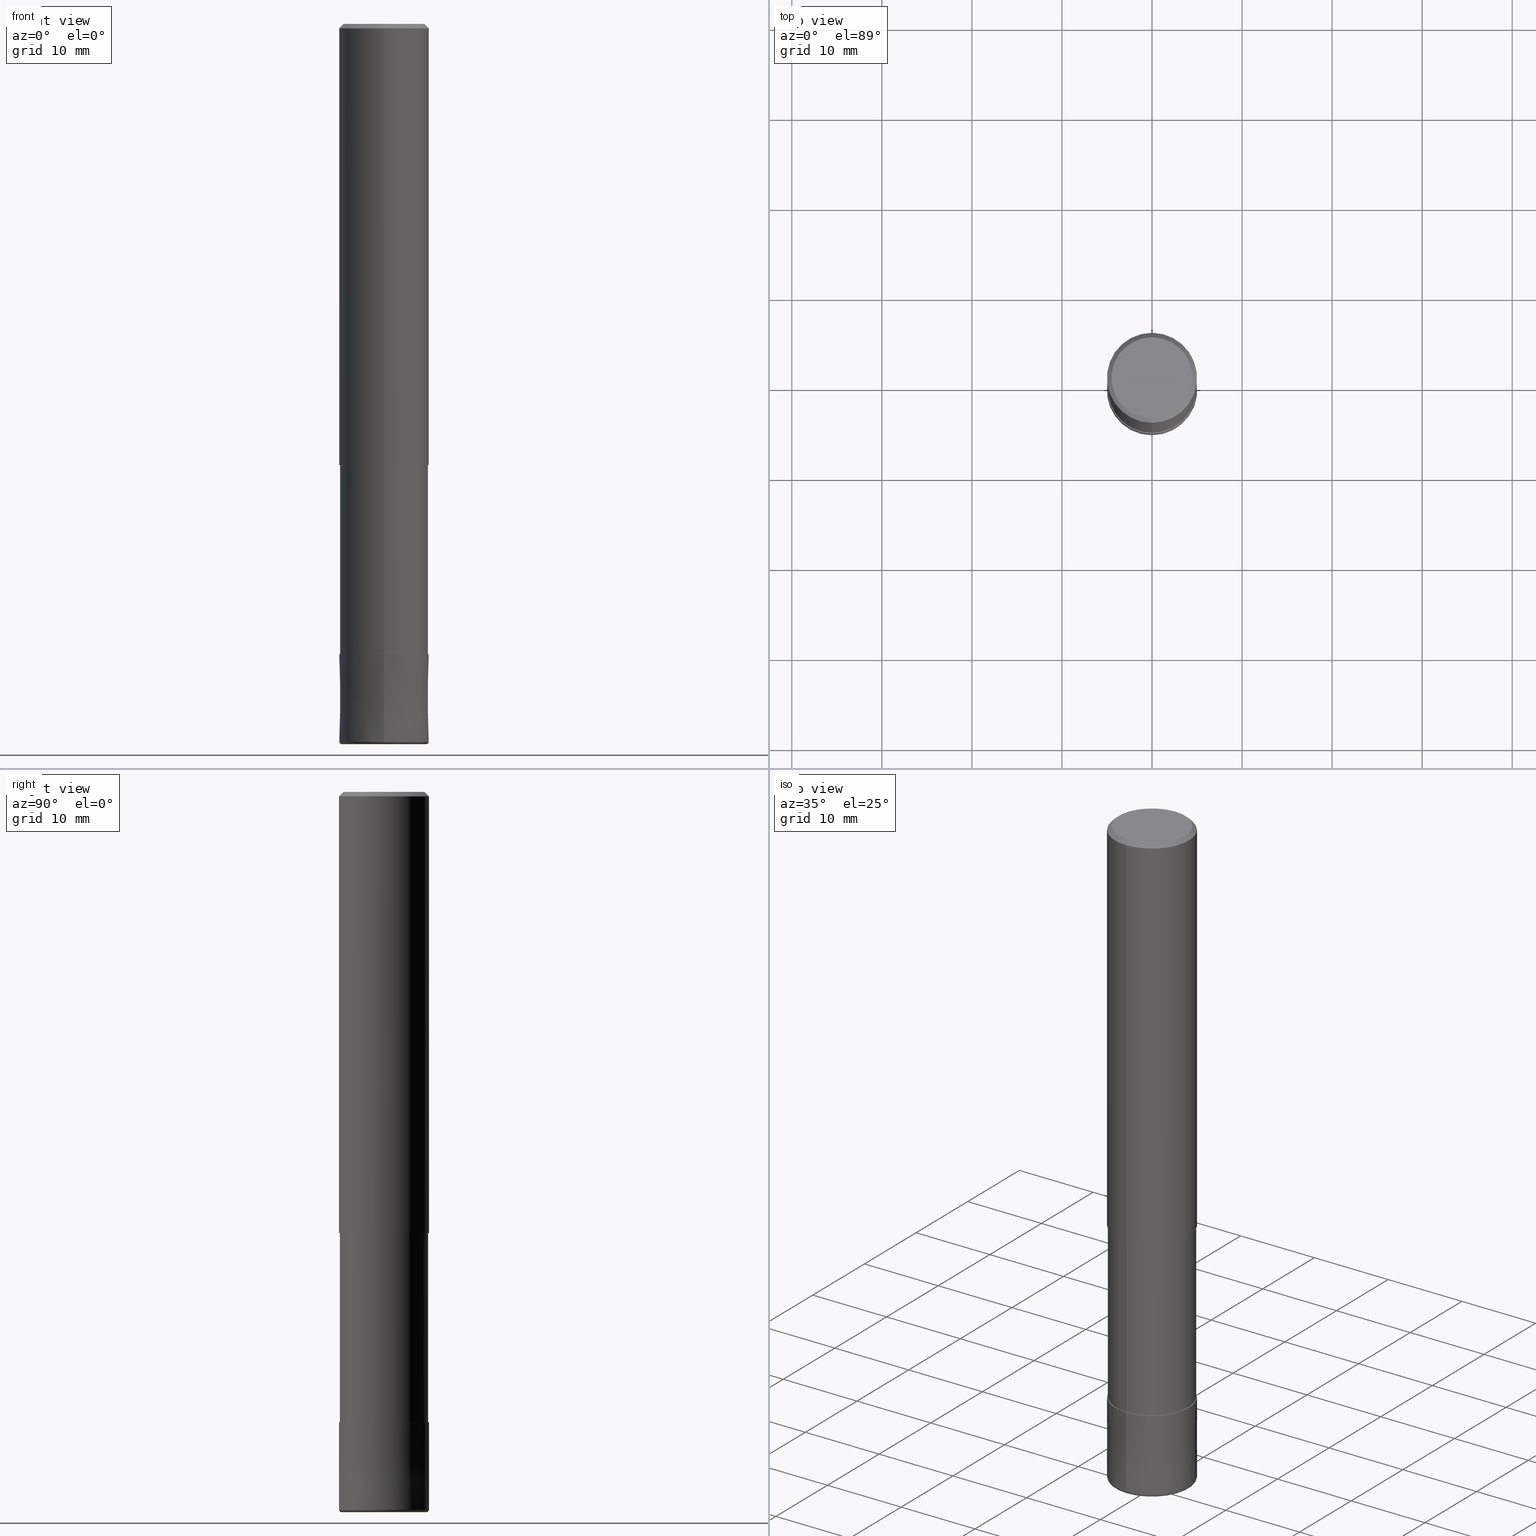
[diagram: canonical four-view strip — front | top / right | iso, engineering-drawing reading convention]
A machine part, canonical four-view strip (front | top / right | iso — engineering-drawing reading convention). The complete STEP part file that produces these views, byte-faithful:
ISO-10303-21;
HEADER;
FILE_DESCRIPTION(('no description'),'unknown implementation level');
FILE_NAME('HHRS6100-03-310-Huellk.stp','  ',('CIMSOURCE GmbH'),('CADClick - KiM GmbH - www.kimweb.de'),'unknown preprocess','ACIS','unknown authorization');
FILE_SCHEMA(('automotive_design'));
ENDSEC;
DATA;
#1=MECHANICAL_DESIGN_GEOMETRIC_PRESENTATION_REPRESENTATION(' ',(#14,#15,#16,#17,#18,#19,#20,#21,#22,#23,#24,#25,#26,#27,#28,#29,#30,#31,#32,#33,#34,#35,#36,#37,#38,#39,#40,#41,#42,#43,#44,#45,#46,#47,#48,#49,#50,#51,#52,#53,#54,#55,#56,#57,#58,#59,#60,#61,#62,#63,#64,#65,#66,#67,#68,#69,#70,#71,#72,#73,#74,#75,#76,#77,#78,#79,#80,#81,#82,#83,#84,#85,#86,#87,#88,#89,#90,#91,#92,#93,#94,#95,#96,#97),#10);
#2=PRODUCT_DEFINITION_CONTEXT('',#98,'design');
#3=APPLICATION_PROTOCOL_DEFINITION('INTERNATIONAL STANDARD','automotive_design',1994,#98);
#4=PRODUCT_CATEGORY_RELATIONSHIP('NONE','NONE',#99,#100);
#5=SHAPE_DEFINITION_REPRESENTATION(#101,#102);
#6=PRODUCT_DEFINITION_CONTEXT('',#103,'design');
#7=APPLICATION_PROTOCOL_DEFINITION('INTERNATIONAL STANDARD','automotive_design',1994,#103);
#8=PRODUCT_CATEGORY_RELATIONSHIP('NONE','NONE',#104,#105);
#9=SHAPE_DEFINITION_REPRESENTATION(#106,#107);
#10= (GEOMETRIC_REPRESENTATION_CONTEXT(3)GLOBAL_UNCERTAINTY_ASSIGNED_CONTEXT((#110))GLOBAL_UNIT_ASSIGNED_CONTEXT((#112,#113,#114))REPRESENTATION_CONTEXT('NONE','WORKSPACE'));
#14=STYLED_ITEM('',(#116),#117);
#15=STYLED_ITEM('',(#118),#119);
#16=STYLED_ITEM('',(#120),#121);
#17=STYLED_ITEM('',(#122),#123);
#18=STYLED_ITEM('',(#124),#125);
#19=STYLED_ITEM('',(#126),#127);
#20=STYLED_ITEM('',(#128),#129);
#21=STYLED_ITEM('',(#130),#131);
#22=STYLED_ITEM('',(#132),#133);
#23=STYLED_ITEM('',(#134),#135);
#24=STYLED_ITEM('',(#136),#137);
#25=STYLED_ITEM('',(#138),#139);
#26=STYLED_ITEM('',(#140),#141);
#27=STYLED_ITEM('',(#142),#143);
#28=STYLED_ITEM('',(#144),#145);
#29=STYLED_ITEM('',(#146),#147);
#30=STYLED_ITEM('',(#148),#149);
#31=STYLED_ITEM('',(#150),#151);
#32=STYLED_ITEM('',(#152),#153);
#33=STYLED_ITEM('',(#154),#155);
#34=STYLED_ITEM('',(#156),#157);
#35=STYLED_ITEM('',(#158),#159);
#36=STYLED_ITEM('',(#160),#161);
#37=STYLED_ITEM('',(#162),#163);
#38=STYLED_ITEM('',(#164),#165);
#39=STYLED_ITEM('',(#166),#167);
#40=STYLED_ITEM('',(#168),#169);
#41=STYLED_ITEM('',(#170),#171);
#42=STYLED_ITEM('',(#172),#173);
#43=STYLED_ITEM('',(#174),#175);
#44=STYLED_ITEM('',(#176),#177);
#45=STYLED_ITEM('',(#178),#179);
#46=STYLED_ITEM('',(#180),#181);
#47=STYLED_ITEM('',(#182),#183);
#48=STYLED_ITEM('',(#184),#185);
#49=STYLED_ITEM('',(#186),#187);
#50=STYLED_ITEM('',(#188),#189);
#51=STYLED_ITEM('',(#190),#191);
#52=STYLED_ITEM('',(#192),#193);
#53=STYLED_ITEM('',(#194),#195);
#54=STYLED_ITEM('',(#196),#197);
#55=STYLED_ITEM('',(#198),#199);
#56=STYLED_ITEM('',(#200),#201);
#57=STYLED_ITEM('',(#202),#203);
#58=STYLED_ITEM('',(#204),#205);
#59=STYLED_ITEM('',(#206),#207);
#60=STYLED_ITEM('',(#208),#209);
#61=STYLED_ITEM('',(#210),#211);
#62=STYLED_ITEM('',(#212),#213);
#63=STYLED_ITEM('',(#214),#215);
#64=STYLED_ITEM('',(#216),#217);
#65=STYLED_ITEM('',(#218),#219);
#66=STYLED_ITEM('',(#220),#221);
#67=STYLED_ITEM('',(#222),#223);
#68=STYLED_ITEM('',(#224),#225);
#69=STYLED_ITEM('',(#226),#227);
#70=STYLED_ITEM('',(#228),#229);
#71=STYLED_ITEM('',(#230),#231);
#72=STYLED_ITEM('',(#232),#233);
#73=STYLED_ITEM('',(#234),#235);
#74=STYLED_ITEM('',(#236),#237);
#75=STYLED_ITEM('',(#238),#239);
#76=STYLED_ITEM('',(#240),#241);
#77=STYLED_ITEM('',(#242),#243);
#78=STYLED_ITEM('',(#244),#245);
#79=STYLED_ITEM('',(#246),#247);
#80=STYLED_ITEM('',(#248),#249);
#81=STYLED_ITEM('',(#250),#251);
#82=STYLED_ITEM('',(#252),#253);
#83=STYLED_ITEM('',(#254),#255);
#84=STYLED_ITEM('',(#256),#257);
#85=STYLED_ITEM('',(#258),#259);
#86=STYLED_ITEM('',(#260),#261);
#87=STYLED_ITEM('',(#262),#263);
#88=STYLED_ITEM('',(#264),#265);
#89=STYLED_ITEM('',(#266),#267);
#90=STYLED_ITEM('',(#268),#269);
#91=STYLED_ITEM('',(#270),#271);
#92=STYLED_ITEM('',(#272),#273);
#93=STYLED_ITEM('',(#274),#275);
#94=STYLED_ITEM('',(#276),#277);
#95=STYLED_ITEM('',(#278),#279);
#96=STYLED_ITEM('',(#280),#281);
#97=STYLED_ITEM('',(#282),#283);
#98=APPLICATION_CONTEXT(' ');
#99=PRODUCT_CATEGORY('part','NONE');
#100=PRODUCT_RELATED_PRODUCT_CATEGORY('detail',' ',(#284));
#101=PRODUCT_DEFINITION_SHAPE('NONE','NONE',#285);
#102=ADVANCED_BREP_SHAPE_REPRESENTATION('1',(#237,#286),#10);
#103=APPLICATION_CONTEXT(' ');
#104=PRODUCT_CATEGORY('part','NONE');
#105=PRODUCT_RELATED_PRODUCT_CATEGORY('detail',' ',(#287));
#106=PRODUCT_DEFINITION_SHAPE('NONE','NONE',#288);
#107=ADVANCED_BREP_SHAPE_REPRESENTATION('2',(#263,#289),#10);
#110=UNCERTAINTY_MEASURE_WITH_UNIT(LENGTH_MEASURE(1.0E-006),#112,'','');
#112= (CONVERSION_BASED_UNIT('MILLIMETRE',#292)LENGTH_UNIT()NAMED_UNIT(#295));
#113= (NAMED_UNIT(#297)PLANE_ANGLE_UNIT()SI_UNIT($,.RADIAN.));
#114= (NAMED_UNIT(#297)SOLID_ANGLE_UNIT()SI_UNIT($,.STERADIAN.));
#116=PRESENTATION_STYLE_ASSIGNMENT((#303));
#117=EDGE_CURVE('',#243,#143,#304,.T.);
#118=PRESENTATION_STYLE_ASSIGNMENT((#305));
#119=ADVANCED_FACE('',(#306,#307),#308,.T.);
#120=PRESENTATION_STYLE_ASSIGNMENT((#309));
#121=ADVANCED_FACE('',(#310),#311,.F.);
#122=PRESENTATION_STYLE_ASSIGNMENT((#312));
#123=VERTEX_POINT('',#313);
#124=PRESENTATION_STYLE_ASSIGNMENT((#314));
#125=ADVANCED_FACE('',(#315),#316,.T.);
#126=PRESENTATION_STYLE_ASSIGNMENT((#317));
#127=EDGE_CURVE('',#187,#275,#318,.T.);
#128=PRESENTATION_STYLE_ASSIGNMENT((#319));
#129=EDGE_CURVE('',#183,#259,#320,.T.);
#130=PRESENTATION_STYLE_ASSIGNMENT((#321));
#131=VERTEX_POINT('',#322);
#132=PRESENTATION_STYLE_ASSIGNMENT((#323));
#133=VERTEX_POINT('',#324);
#134=PRESENTATION_STYLE_ASSIGNMENT((#325));
#135=ADVANCED_FACE('',(#326),#327,.T.);
#136=PRESENTATION_STYLE_ASSIGNMENT((#328));
#137=ADVANCED_FACE('',(#329),#330,.T.);
#138=PRESENTATION_STYLE_ASSIGNMENT((#331));
#139=VERTEX_POINT('',#332);
#140=PRESENTATION_STYLE_ASSIGNMENT((#333));
#141=ADVANCED_FACE('',(#334,#335),#336,.T.);
#142=PRESENTATION_STYLE_ASSIGNMENT((#337));
#143=VERTEX_POINT('',#338);
#144=PRESENTATION_STYLE_ASSIGNMENT((#339));
#145=EDGE_CURVE('',#155,#199,#340,.T.);
#146=PRESENTATION_STYLE_ASSIGNMENT((#341));
#147=ADVANCED_FACE('',(#342,#343),#344,.T.);
#148=PRESENTATION_STYLE_ASSIGNMENT((#345));
#149=ADVANCED_FACE('',(#346),#347,.T.);
#150=PRESENTATION_STYLE_ASSIGNMENT((#348));
#151=EDGE_CURVE('',#199,#267,#349,.T.);
#152=PRESENTATION_STYLE_ASSIGNMENT((#350));
#153=EDGE_CURVE('',#157,#187,#351,.T.);
#154=PRESENTATION_STYLE_ASSIGNMENT((#352));
#155=VERTEX_POINT('',#353);
#156=PRESENTATION_STYLE_ASSIGNMENT((#354));
#157=VERTEX_POINT('',#355);
#158=PRESENTATION_STYLE_ASSIGNMENT((#356));
#159=EDGE_CURVE('',#275,#123,#357,.T.);
#160=PRESENTATION_STYLE_ASSIGNMENT((#358));
#161=EDGE_CURVE('',#267,#131,#359,.T.);
#162=PRESENTATION_STYLE_ASSIGNMENT((#360));
#163=ADVANCED_FACE('',(#361),#362,.T.);
#164=PRESENTATION_STYLE_ASSIGNMENT((#363));
#165=VERTEX_POINT('',#364);
#166=PRESENTATION_STYLE_ASSIGNMENT((#365));
#167=VERTEX_POINT('',#366);
#168=PRESENTATION_STYLE_ASSIGNMENT((#367));
#169=ADVANCED_FACE('',(#368),#369,.T.);
#170=PRESENTATION_STYLE_ASSIGNMENT((#370));
#171=VERTEX_POINT('',#371);
#172=PRESENTATION_STYLE_ASSIGNMENT((#372));
#173=ADVANCED_FACE('',(#373),#374,.T.);
#174=PRESENTATION_STYLE_ASSIGNMENT((#375));
#175=EDGE_CURVE('',#165,#193,#376,.T.);
#176=PRESENTATION_STYLE_ASSIGNMENT((#377));
#177=EDGE_CURVE('',#123,#157,#378,.T.);
#178=PRESENTATION_STYLE_ASSIGNMENT((#379));
#179=EDGE_CURVE('',#279,#213,#380,.T.);
#180=PRESENTATION_STYLE_ASSIGNMENT((#381));
#181=VERTEX_POINT('',#382);
#182=PRESENTATION_STYLE_ASSIGNMENT((#383));
#183=VERTEX_POINT('',#384);
#184=PRESENTATION_STYLE_ASSIGNMENT((#385));
#185=EDGE_CURVE('',#275,#187,#386,.T.);
#186=PRESENTATION_STYLE_ASSIGNMENT((#387));
#187=VERTEX_POINT('',#388);
#188=PRESENTATION_STYLE_ASSIGNMENT((#389));
#189=ADVANCED_FACE('',(#390),#391,.T.);
#190=PRESENTATION_STYLE_ASSIGNMENT((#392));
#191=EDGE_CURVE('',#143,#157,#393,.T.);
#192=PRESENTATION_STYLE_ASSIGNMENT((#394));
#193=VERTEX_POINT('',#395);
#194=PRESENTATION_STYLE_ASSIGNMENT((#396));
#195=ADVANCED_FACE('',(#397),#398,.T.);
#196=PRESENTATION_STYLE_ASSIGNMENT((#399));
#197=EDGE_CURVE('',#181,#217,#400,.T.);
#198=PRESENTATION_STYLE_ASSIGNMENT((#401));
#199=VERTEX_POINT('',#402);
#200=PRESENTATION_STYLE_ASSIGNMENT((#403));
#201=ADVANCED_FACE('',(#404),#405,.T.);
#202=PRESENTATION_STYLE_ASSIGNMENT((#406));
#203=EDGE_CURVE('',#167,#251,#407,.T.);
#204=PRESENTATION_STYLE_ASSIGNMENT((#408));
#205=EDGE_CURVE('',#183,#139,#409,.T.);
#206=PRESENTATION_STYLE_ASSIGNMENT((#410));
#207=EDGE_CURVE('',#193,#165,#411,.T.);
#208=PRESENTATION_STYLE_ASSIGNMENT((#412));
#209=ADVANCED_FACE('',(#413),#414,.T.);
#210=PRESENTATION_STYLE_ASSIGNMENT((#415));
#211=ADVANCED_FACE('',(#416,#417),#418,.T.);
#212=PRESENTATION_STYLE_ASSIGNMENT((#419));
#213=VERTEX_POINT('',#420);
#214=PRESENTATION_STYLE_ASSIGNMENT((#421));
#215=ADVANCED_FACE('',(#422),#423,.T.);
#216=PRESENTATION_STYLE_ASSIGNMENT((#424));
#217=VERTEX_POINT('',#425);
#218=PRESENTATION_STYLE_ASSIGNMENT((#426));
#219=EDGE_CURVE('',#167,#217,#427,.T.);
#220=PRESENTATION_STYLE_ASSIGNMENT((#428));
#221=EDGE_CURVE('',#213,#171,#429,.T.);
#222=PRESENTATION_STYLE_ASSIGNMENT((#430));
#223=EDGE_CURVE('',#143,#243,#431,.T.);
#224=PRESENTATION_STYLE_ASSIGNMENT((#432));
#225=EDGE_CURVE('',#233,#279,#433,.T.);
#226=PRESENTATION_STYLE_ASSIGNMENT((#434));
#227=EDGE_CURVE('',#133,#259,#435,.T.);
#228=PRESENTATION_STYLE_ASSIGNMENT((#436));
#229=EDGE_CURVE('',#259,#133,#437,.T.);
#230=PRESENTATION_STYLE_ASSIGNMENT((#438));
#231=EDGE_CURVE('',#171,#233,#439,.T.);
#232=PRESENTATION_STYLE_ASSIGNMENT((#440));
#233=VERTEX_POINT('',#441);
#234=PRESENTATION_STYLE_ASSIGNMENT((#442));
#235=EDGE_CURVE('',#217,#167,#443,.T.);
#236=PRESENTATION_STYLE_ASSIGNMENT((#444));
#237=MANIFOLD_SOLID_BREP('1',#445);
#238=PRESENTATION_STYLE_ASSIGNMENT((#446));
#239=ADVANCED_FACE('',(#447),#448,.T.);
#240=PRESENTATION_STYLE_ASSIGNMENT((#449));
#241=EDGE_CURVE('',#139,#183,#450,.T.);
#242=PRESENTATION_STYLE_ASSIGNMENT((#451));
#243=VERTEX_POINT('',#452);
#244=PRESENTATION_STYLE_ASSIGNMENT((#453));
#245=EDGE_CURVE('',#251,#181,#454,.T.);
#246=PRESENTATION_STYLE_ASSIGNMENT((#455));
#247=ADVANCED_FACE('',(#456),#457,.T.);
#248=PRESENTATION_STYLE_ASSIGNMENT((#458));
#249=EDGE_CURVE('',#267,#199,#459,.T.);
#250=PRESENTATION_STYLE_ASSIGNMENT((#460));
#251=VERTEX_POINT('',#461);
#252=PRESENTATION_STYLE_ASSIGNMENT((#462));
#253=EDGE_CURVE('',#123,#243,#463,.T.);
#254=PRESENTATION_STYLE_ASSIGNMENT((#464));
#255=EDGE_CURVE('',#131,#155,#465,.T.);
#256=PRESENTATION_STYLE_ASSIGNMENT((#466));
#257=EDGE_CURVE('',#193,#213,#467,.T.);
#258=PRESENTATION_STYLE_ASSIGNMENT((#468));
#259=VERTEX_POINT('',#469);
#260=PRESENTATION_STYLE_ASSIGNMENT((#470));
#261=EDGE_CURVE('',#155,#131,#471,.T.);
#262=PRESENTATION_STYLE_ASSIGNMENT((#472));
#263=MANIFOLD_SOLID_BREP('2',#473);
#264=PRESENTATION_STYLE_ASSIGNMENT((#474));
#265=EDGE_CURVE('',#171,#165,#475,.T.);
#266=PRESENTATION_STYLE_ASSIGNMENT((#476));
#267=VERTEX_POINT('',#477);
#268=PRESENTATION_STYLE_ASSIGNMENT((#478));
#269=EDGE_CURVE('',#133,#139,#479,.T.);
#270=PRESENTATION_STYLE_ASSIGNMENT((#480));
#271=ADVANCED_FACE('',(#481),#482,.F.);
#272=PRESENTATION_STYLE_ASSIGNMENT((#483));
#273=EDGE_CURVE('',#181,#251,#484,.T.);
#274=PRESENTATION_STYLE_ASSIGNMENT((#485));
#275=VERTEX_POINT('',#486);
#276=PRESENTATION_STYLE_ASSIGNMENT((#487));
#277=EDGE_CURVE('',#157,#123,#488,.T.);
#278=PRESENTATION_STYLE_ASSIGNMENT((#489));
#279=VERTEX_POINT('',#490);
#280=PRESENTATION_STYLE_ASSIGNMENT((#491));
#281=EDGE_CURVE('',#279,#233,#492,.T.);
#282=PRESENTATION_STYLE_ASSIGNMENT((#493));
#283=EDGE_CURVE('',#171,#213,#494,.T.);
#284=PRODUCT('1','1','PART-1-DESC',(#495));
#285=PRODUCT_DEFINITION('NONE','NONE',#496,#2);
#286=AXIS2_PLACEMENT_3D('',#497,#498,#499);
#287=PRODUCT('2','2','PART-2-DESC',(#500));
#288=PRODUCT_DEFINITION('NONE','NONE',#501,#6);
#289=AXIS2_PLACEMENT_3D('',#502,#503,#504);
#292=LENGTH_MEASURE_WITH_UNIT(LENGTH_MEASURE(1.0),#505);
#295=DIMENSIONAL_EXPONENTS(1.0,0.0,0.0,0.0,0.0,0.0,0.0);
#297=DIMENSIONAL_EXPONENTS(0.0,0.0,0.0,0.0,0.0,0.0,0.0);
#303=CURVE_STYLE('',#506,POSITIVE_LENGTH_MEASURE(1.0E-006),#507);
#304=CIRCLE('',#508,5.0);
#305=SURFACE_STYLE_USAGE(.BOTH.,#509);
#306=FACE_BOUND('',#510,.T.);
#307=FACE_OUTER_BOUND('',#511,.T.);
#308=PLANE('',#512);
#309=SURFACE_STYLE_USAGE(.BOTH.,#513);
#310=FACE_OUTER_BOUND('',#514,.T.);
#311=CYLINDRICAL_SURFACE('',#515,2.25);
#312=POINT_STYLE(' ',#516,POSITIVE_LENGTH_MEASURE(1.0E-006),#517);
#313=CARTESIAN_POINT('',(0.0,5.0,-0.5));
#314=SURFACE_STYLE_USAGE(.BOTH.,#518);
#315=FACE_OUTER_BOUND('',#519,.T.);
#316=TOROIDAL_SURFACE('',#520,4.7,0.300000000000002);
#317=CURVE_STYLE('',#521,POSITIVE_LENGTH_MEASURE(1.0E-006),#522);
#318=CIRCLE('',#523,4.5);
#319=CURVE_STYLE('',#524,POSITIVE_LENGTH_MEASURE(1.0E-006),#525);
#320=LINE('',#526,#527);
#321=POINT_STYLE(' ',#528,POSITIVE_LENGTH_MEASURE(1.0E-006),#529);
#322=CARTESIAN_POINT('',(2.75536429610035E-016,-2.25,-70.0));
#323=POINT_STYLE(' ',#530,POSITIVE_LENGTH_MEASURE(1.0E-006),#531);
#324=CARTESIAN_POINT('',(0.0,2.25,-70.0));
#325=SURFACE_STYLE_USAGE(.BOTH.,#532);
#326=FACE_OUTER_BOUND('',#533,.T.);
#327=CONICAL_SURFACE('',#534,4.75,0.785398163397448);
#328=SURFACE_STYLE_USAGE(.BOTH.,#535);
#329=FACE_OUTER_BOUND('',#536,.T.);
#330=PLANE('',#537);
#331=POINT_STYLE(' ',#538,POSITIVE_LENGTH_MEASURE(1.0E-006),#539);
#332=CARTESIAN_POINT('',(0.0,2.25,-79.8));
#333=SURFACE_STYLE_USAGE(.BOTH.,#540);
#334=FACE_OUTER_BOUND('',#541,.T.);
#335=FACE_BOUND('',#542,.T.);
#336=PLANE('',#543);
#337=POINT_STYLE(' ',#544,POSITIVE_LENGTH_MEASURE(1.0E-006),#545);
#338=CARTESIAN_POINT('',(6.12303176911189E-016,-5.0,-49.0));
#339=CURVE_STYLE('',#546,POSITIVE_LENGTH_MEASURE(1.0E-006),#547);
#340=LINE('',#548,#549);
#341=SURFACE_STYLE_USAGE(.BOTH.,#550);
#342=FACE_BOUND('',#551,.T.);
#343=FACE_OUTER_BOUND('',#552,.T.);
#344=PLANE('',#553);
#345=SURFACE_STYLE_USAGE(.BOTH.,#554);
#346=FACE_OUTER_BOUND('',#555,.T.);
#347=CONICAL_SURFACE('',#556,4.99995,1.03092783501262E-005);
#348=CURVE_STYLE('',#557,POSITIVE_LENGTH_MEASURE(1.0E-006),#558);
#349=CIRCLE('',#559,2.25);
#350=CURVE_STYLE('',#560,POSITIVE_LENGTH_MEASURE(1.0E-006),#561);
#351=LINE('',#562,#563);
#352=POINT_STYLE(' ',#564,POSITIVE_LENGTH_MEASURE(1.0E-006),#565);
#353=CARTESIAN_POINT('',(0.0,2.25,-70.0));
#354=POINT_STYLE(' ',#566,POSITIVE_LENGTH_MEASURE(1.0E-006),#567);
#355=CARTESIAN_POINT('',(6.12303176911189E-016,-5.0,-0.5));
#356=CURVE_STYLE('',#568,POSITIVE_LENGTH_MEASURE(1.0E-006),#569);
#357=LINE('',#570,#571);
#358=CURVE_STYLE('',#572,POSITIVE_LENGTH_MEASURE(1.0E-006),#573);
#359=LINE('',#574,#575);
#360=SURFACE_STYLE_USAGE(.BOTH.,#576);
#361=FACE_OUTER_BOUND('',#577,.T.);
#362=TOROIDAL_SURFACE('',#578,4.7,0.300000000000002);
#363=POINT_STYLE(' ',#579,POSITIVE_LENGTH_MEASURE(1.0E-006),#580);
#364=CARTESIAN_POINT('',(5.75564986296517E-016,-4.7,-80.0));
#365=POINT_STYLE(' ',#581,POSITIVE_LENGTH_MEASURE(1.0E-006),#582);
#366=CARTESIAN_POINT('',(6.00663293518107E-016,-4.90495,-70.0));
#367=SURFACE_STYLE_USAGE(.BOTH.,#583);
#368=FACE_OUTER_BOUND('',#584,.T.);
#369=CONICAL_SURFACE('',#585,4.75,0.785398163397448);
#370=POINT_STYLE(' ',#586,POSITIVE_LENGTH_MEASURE(1.0E-006),#587);
#371=CARTESIAN_POINT('',(6.12303176911189E-016,-5.0,-79.7));
#372=SURFACE_STYLE_USAGE(.BOTH.,#588);
#373=FACE_OUTER_BOUND('',#589,.T.);
#374=CYLINDRICAL_SURFACE('',#590,5.0);
#375=CURVE_STYLE('',#591,POSITIVE_LENGTH_MEASURE(1.0E-006),#592);
#376=CIRCLE('',#593,4.7);
#377=CURVE_STYLE('',#594,POSITIVE_LENGTH_MEASURE(1.0E-006),#595);
#378=CIRCLE('',#596,5.0);
#379=CURVE_STYLE('',#597,POSITIVE_LENGTH_MEASURE(1.0E-006),#598);
#380=LINE('',#599,#600);
#381=POINT_STYLE(' ',#601,POSITIVE_LENGTH_MEASURE(1.0E-006),#602);
#382=CARTESIAN_POINT('',(0.0,4.90495,-49.0));
#383=POINT_STYLE(' ',#603,POSITIVE_LENGTH_MEASURE(1.0E-006),#604);
#384=CARTESIAN_POINT('',(2.75536429610035E-016,-2.25,-79.8));
#385=CURVE_STYLE('',#605,POSITIVE_LENGTH_MEASURE(1.0E-006),#606);
#386=CIRCLE('',#607,4.5);
#387=POINT_STYLE(' ',#608,POSITIVE_LENGTH_MEASURE(1.0E-006),#609);
#388=CARTESIAN_POINT('',(5.5107285922007E-016,-4.5,0.0));
#389=SURFACE_STYLE_USAGE(.BOTH.,#610);
#390=FACE_OUTER_BOUND('',#611,.T.);
#391=CYLINDRICAL_SURFACE('',#612,2.25);
#392=CURVE_STYLE('',#613,POSITIVE_LENGTH_MEASURE(1.0E-006),#614);
#393=LINE('',#615,#616);
#394=POINT_STYLE(' ',#617,POSITIVE_LENGTH_MEASURE(1.0E-006),#618);
#395=CARTESIAN_POINT('',(0.0,4.7,-80.0));
#396=SURFACE_STYLE_USAGE(.BOTH.,#619);
#397=FACE_OUTER_BOUND('',#620,.T.);
#398=CYLINDRICAL_SURFACE('',#621,2.25);
#399=CURVE_STYLE('',#622,POSITIVE_LENGTH_MEASURE(1.0E-006),#623);
#400=LINE('',#624,#625);
#401=POINT_STYLE(' ',#626,POSITIVE_LENGTH_MEASURE(1.0E-006),#627);
#402=CARTESIAN_POINT('',(0.0,2.25,-80.0));
#403=SURFACE_STYLE_USAGE(.BOTH.,#628);
#404=FACE_OUTER_BOUND('',#629,.T.);
#405=CYLINDRICAL_SURFACE('',#630,4.90495);
#406=CURVE_STYLE('',#631,POSITIVE_LENGTH_MEASURE(1.0E-006),#632);
#407=LINE('',#633,#634);
#408=CURVE_STYLE('',#635,POSITIVE_LENGTH_MEASURE(1.0E-006),#636);
#409=CIRCLE('',#637,2.25);
#410=CURVE_STYLE('',#638,POSITIVE_LENGTH_MEASURE(1.0E-006),#639);
#411=CIRCLE('',#640,4.7);
#412=SURFACE_STYLE_USAGE(.BOTH.,#641);
#413=FACE_OUTER_BOUND('',#642,.T.);
#414=PLANE('',#643);
#415=SURFACE_STYLE_USAGE(.BOTH.,#644);
#416=FACE_OUTER_BOUND('',#645,.T.);
#417=FACE_BOUND('',#646,.T.);
#418=PLANE('',#647);
#419=POINT_STYLE(' ',#648,POSITIVE_LENGTH_MEASURE(1.0E-006),#649);
#420=CARTESIAN_POINT('',(0.0,5.0,-79.7));
#421=SURFACE_STYLE_USAGE(.BOTH.,#650);
#422=FACE_OUTER_BOUND('',#651,.T.);
#423=CYLINDRICAL_SURFACE('',#652,5.0);
#424=POINT_STYLE(' ',#653,POSITIVE_LENGTH_MEASURE(1.0E-006),#654);
#425=CARTESIAN_POINT('',(0.0,4.90495,-70.0));
#426=CURVE_STYLE('',#655,POSITIVE_LENGTH_MEASURE(1.0E-006),#656);
#427=CIRCLE('',#657,4.90495);
#428=CURVE_STYLE('',#658,POSITIVE_LENGTH_MEASURE(1.0E-006),#659);
#429=CIRCLE('',#660,5.0);
#430=CURVE_STYLE('',#661,POSITIVE_LENGTH_MEASURE(1.0E-006),#662);
#431=CIRCLE('',#663,5.0);
#432=CURVE_STYLE('',#664,POSITIVE_LENGTH_MEASURE(1.0E-006),#665);
#433=CIRCLE('',#666,4.9999);
#434=CURVE_STYLE('',#667,POSITIVE_LENGTH_MEASURE(1.0E-006),#668);
#435=CIRCLE('',#669,2.25);
#436=CURVE_STYLE('',#670,POSITIVE_LENGTH_MEASURE(1.0E-006),#671);
#437=CIRCLE('',#672,2.25);
#438=CURVE_STYLE('',#673,POSITIVE_LENGTH_MEASURE(1.0E-006),#674);
#439=LINE('',#675,#676);
#440=POINT_STYLE(' ',#677,POSITIVE_LENGTH_MEASURE(1.0E-006),#678);
#441=CARTESIAN_POINT('',(6.1229093084765E-016,-4.9999,-70.0));
#442=CURVE_STYLE('',#679,POSITIVE_LENGTH_MEASURE(1.0E-006),#680);
#443=CIRCLE('',#681,4.90495);
#444=SURFACE_STYLE_USAGE(.BOTH.,#682);
#445=CLOSED_SHELL('',(#189,#201,#215,#135,#211,#209,#169,#173,#239,#147,#195,#137));
#446=SURFACE_STYLE_USAGE(.BOTH.,#683);
#447=FACE_OUTER_BOUND('',#684,.T.);
#448=CYLINDRICAL_SURFACE('',#685,4.90495);
#449=CURVE_STYLE('',#686,POSITIVE_LENGTH_MEASURE(1.0E-006),#687);
#450=CIRCLE('',#688,2.25);
#451=POINT_STYLE(' ',#689,POSITIVE_LENGTH_MEASURE(1.0E-006),#690);
#452=CARTESIAN_POINT('',(0.0,5.0,-49.0));
#453=CURVE_STYLE('',#691,POSITIVE_LENGTH_MEASURE(1.0E-006),#692);
#454=CIRCLE('',#693,4.90495);
#455=SURFACE_STYLE_USAGE(.BOTH.,#694);
#456=FACE_OUTER_BOUND('',#695,.T.);
#457=CONICAL_SURFACE('',#696,4.99995,1.03092783501262E-005);
#458=CURVE_STYLE('',#697,POSITIVE_LENGTH_MEASURE(1.0E-006),#698);
#459=CIRCLE('',#699,2.25);
#460=POINT_STYLE(' ',#700,POSITIVE_LENGTH_MEASURE(1.0E-006),#701);
#461=CARTESIAN_POINT('',(6.00663293518107E-016,-4.90495,-49.0));
#462=CURVE_STYLE('',#702,POSITIVE_LENGTH_MEASURE(1.0E-006),#703);
#463=LINE('',#704,#705);
#464=CURVE_STYLE('',#706,POSITIVE_LENGTH_MEASURE(1.0E-006),#707);
#465=CIRCLE('',#708,2.25);
#466=CURVE_STYLE('',#709,POSITIVE_LENGTH_MEASURE(1.0E-006),#710);
#467=CIRCLE('',#711,0.300000000000002);
#468=POINT_STYLE(' ',#712,POSITIVE_LENGTH_MEASURE(1.0E-006),#713);
#469=CARTESIAN_POINT('',(2.75536429610035E-016,-2.25,-70.0));
#470=CURVE_STYLE('',#714,POSITIVE_LENGTH_MEASURE(1.0E-006),#715);
#471=CIRCLE('',#716,2.25);
#472=SURFACE_STYLE_USAGE(.BOTH.,#717);
#473=CLOSED_SHELL('',(#271,#163,#149,#141,#247,#125,#119,#121));
#474=CURVE_STYLE('',#718,POSITIVE_LENGTH_MEASURE(1.0E-006),#719);
#475=CIRCLE('',#720,0.300000000000002);
#476=POINT_STYLE(' ',#721,POSITIVE_LENGTH_MEASURE(1.0E-006),#722);
#477=CARTESIAN_POINT('',(2.75536429610035E-016,-2.25,-80.0));
#478=CURVE_STYLE('',#723,POSITIVE_LENGTH_MEASURE(1.0E-006),#724);
#479=LINE('',#725,#726);
#480=SURFACE_STYLE_USAGE(.BOTH.,#727);
#481=FACE_OUTER_BOUND('',#728,.T.);
#482=CYLINDRICAL_SURFACE('',#729,2.25);
#483=CURVE_STYLE('',#730,POSITIVE_LENGTH_MEASURE(1.0E-006),#731);
#484=CIRCLE('',#732,4.90495);
#485=POINT_STYLE(' ',#733,POSITIVE_LENGTH_MEASURE(1.0E-006),#734);
#486=CARTESIAN_POINT('',(0.0,4.5,0.0));
#487=CURVE_STYLE('',#735,POSITIVE_LENGTH_MEASURE(1.0E-006),#736);
#488=CIRCLE('',#737,5.0);
#489=POINT_STYLE(' ',#738,POSITIVE_LENGTH_MEASURE(1.0E-006),#739);
#490=CARTESIAN_POINT('',(0.0,4.9999,-70.0));
#491=CURVE_STYLE('',#740,POSITIVE_LENGTH_MEASURE(1.0E-006),#741);
#492=CIRCLE('',#742,4.9999);
#493=CURVE_STYLE('',#743,POSITIVE_LENGTH_MEASURE(1.0E-006),#744);
#494=CIRCLE('',#745,5.0);
#495=PRODUCT_CONTEXT('',#98,'mechanical');
#496=PRODUCT_DEFINITION_FORMATION_WITH_SPECIFIED_SOURCE(' ','NONE',#284,.NOT_KNOWN.);
#497=CARTESIAN_POINT('',(0.0,0.0,0.0));
#498=DIRECTION('',(0.0,0.0,1.0));
#499=DIRECTION('',(1.0,0.0,0.0));
#500=PRODUCT_CONTEXT('',#103,'mechanical');
#501=PRODUCT_DEFINITION_FORMATION_WITH_SPECIFIED_SOURCE(' ','NONE',#287,.NOT_KNOWN.);
#502=CARTESIAN_POINT('',(0.0,0.0,0.0));
#503=DIRECTION('',(0.0,0.0,1.0));
#504=DIRECTION('',(1.0,0.0,0.0));
#505= (NAMED_UNIT(#295)LENGTH_UNIT()SI_UNIT(.MILLI.,.METRE.));
#506=DRAUGHTING_PRE_DEFINED_CURVE_FONT('continuous');
#507=COLOUR_RGB('',0.498039215803146,0.498039215803146,0.498039215803146);
#508=AXIS2_PLACEMENT_3D('',#747,#748,#749);
#509=SURFACE_SIDE_STYLE('',(#750));
#510=EDGE_LOOP('',(#751,#752));
#511=EDGE_LOOP('',(#753,#754));
#512=AXIS2_PLACEMENT_3D('',#755,#756,#757);
#513=SURFACE_SIDE_STYLE('',(#758));
#514=EDGE_LOOP('',(#759,#760,#761,#762));
#515=AXIS2_PLACEMENT_3D('',#763,#764,#765);
#516=PRE_DEFINED_MARKER('');
#517=COLOUR_RGB('',0.498039215803146,0.498039215803146,0.498039215803146);
#518=SURFACE_SIDE_STYLE('',(#766));
#519=EDGE_LOOP('',(#767,#768,#769,#770));
#520=AXIS2_PLACEMENT_3D('',#771,#772,#773);
#521=DRAUGHTING_PRE_DEFINED_CURVE_FONT('continuous');
#522=COLOUR_RGB('',0.498039215803146,0.498039215803146,0.498039215803146);
#523=AXIS2_PLACEMENT_3D('',#774,#775,#776);
#524=DRAUGHTING_PRE_DEFINED_CURVE_FONT('continuous');
#525=COLOUR_RGB('',0.498039215803146,0.498039215803146,0.498039215803146);
#526=CARTESIAN_POINT('',(2.75536429610035E-016,-2.25,-74.9));
#527=VECTOR('',#777,1.0);
#528=PRE_DEFINED_MARKER('');
#529=COLOUR_RGB('',0.800000011920929,0.800000011920929,0.800000011920929);
#530=PRE_DEFINED_MARKER('');
#531=COLOUR_RGB('',0.498039215803146,0.498039215803146,0.498039215803146);
#532=SURFACE_SIDE_STYLE('',(#778));
#533=EDGE_LOOP('',(#779,#780,#781,#782));
#534=AXIS2_PLACEMENT_3D('',#783,#784,#785);
#535=SURFACE_SIDE_STYLE('',(#786));
#536=EDGE_LOOP('',(#787,#788));
#537=AXIS2_PLACEMENT_3D('',#789,#790,#791);
#538=PRE_DEFINED_MARKER('');
#539=COLOUR_RGB('',0.498039215803146,0.498039215803146,0.498039215803146);
#540=SURFACE_SIDE_STYLE('',(#792));
#541=EDGE_LOOP('',(#793,#794));
#542=EDGE_LOOP('',(#795,#796));
#543=AXIS2_PLACEMENT_3D('',#797,#798,#799);
#544=PRE_DEFINED_MARKER('');
#545=COLOUR_RGB('',0.498039215803146,0.498039215803146,0.498039215803146);
#546=DRAUGHTING_PRE_DEFINED_CURVE_FONT('continuous');
#547=COLOUR_RGB('',0.800000011920929,0.800000011920929,0.800000011920929);
#548=CARTESIAN_POINT('',(-2.75536429610035E-016,2.25,-75.0));
#549=VECTOR('',#800,1.0);
#550=SURFACE_SIDE_STYLE('',(#801));
#551=EDGE_LOOP('',(#802,#803));
#552=EDGE_LOOP('',(#804,#805));
#553=AXIS2_PLACEMENT_3D('',#806,#807,#808);
#554=SURFACE_SIDE_STYLE('',(#809));
#555=EDGE_LOOP('',(#810,#811,#812,#813));
#556=AXIS2_PLACEMENT_3D('',#814,#815,#816);
#557=DRAUGHTING_PRE_DEFINED_CURVE_FONT('continuous');
#558=COLOUR_RGB('',0.800000011920929,0.800000011920929,0.800000011920929);
#559=AXIS2_PLACEMENT_3D('',#817,#818,#819);
#560=DRAUGHTING_PRE_DEFINED_CURVE_FONT('continuous');
#561=COLOUR_RGB('',0.498039215803146,0.498039215803146,0.498039215803146);
#562=CARTESIAN_POINT('',(5.81688018065629E-016,-4.75,-0.25));
#563=VECTOR('',#820,1.0);
#564=PRE_DEFINED_MARKER('');
#565=COLOUR_RGB('',0.800000011920929,0.800000011920929,0.800000011920929);
#566=PRE_DEFINED_MARKER('');
#567=COLOUR_RGB('',0.498039215803146,0.498039215803146,0.498039215803146);
#568=DRAUGHTING_PRE_DEFINED_CURVE_FONT('continuous');
#569=COLOUR_RGB('',0.498039215803146,0.498039215803146,0.498039215803146);
#570=CARTESIAN_POINT('',(-5.81688018065629E-016,4.75,-0.25));
#571=VECTOR('',#821,1.0);
#572=DRAUGHTING_PRE_DEFINED_CURVE_FONT('continuous');
#573=COLOUR_RGB('',0.800000011920929,0.800000011920929,0.800000011920929);
#574=CARTESIAN_POINT('',(2.75536429610035E-016,-2.25,-75.0));
#575=VECTOR('',#822,1.0);
#576=SURFACE_SIDE_STYLE('',(#823));
#577=EDGE_LOOP('',(#824,#825,#826,#827));
#578=AXIS2_PLACEMENT_3D('',#828,#829,#830);
#579=PRE_DEFINED_MARKER('');
#580=COLOUR_RGB('',0.800000011920929,0.800000011920929,0.800000011920929);
#581=PRE_DEFINED_MARKER('');
#582=COLOUR_RGB('',0.498039215803146,0.498039215803146,0.498039215803146);
#583=SURFACE_SIDE_STYLE('',(#831));
#584=EDGE_LOOP('',(#832,#833,#834,#835));
#585=AXIS2_PLACEMENT_3D('',#836,#837,#838);
#586=PRE_DEFINED_MARKER('');
#587=COLOUR_RGB('',0.800000011920929,0.800000011920929,0.800000011920929);
#588=SURFACE_SIDE_STYLE('',(#839));
#589=EDGE_LOOP('',(#840,#841,#842,#843));
#590=AXIS2_PLACEMENT_3D('',#844,#845,#846);
#591=DRAUGHTING_PRE_DEFINED_CURVE_FONT('continuous');
#592=COLOUR_RGB('',0.800000011920929,0.800000011920929,0.800000011920929);
#593=AXIS2_PLACEMENT_3D('',#847,#848,#849);
#594=DRAUGHTING_PRE_DEFINED_CURVE_FONT('continuous');
#595=COLOUR_RGB('',0.498039215803146,0.498039215803146,0.498039215803146);
#596=AXIS2_PLACEMENT_3D('',#850,#851,#852);
#597=DRAUGHTING_PRE_DEFINED_CURVE_FONT('continuous');
#598=COLOUR_RGB('',0.800000011920929,0.800000011920929,0.800000011920929);
#599=CARTESIAN_POINT('',(-6.1229705387942E-016,4.99995,-74.85));
#600=VECTOR('',#853,1.0);
#601=PRE_DEFINED_MARKER('');
#602=COLOUR_RGB('',0.498039215803146,0.498039215803146,0.498039215803146);
#603=PRE_DEFINED_MARKER('');
#604=COLOUR_RGB('',0.498039215803146,0.498039215803146,0.498039215803146);
#605=DRAUGHTING_PRE_DEFINED_CURVE_FONT('continuous');
#606=COLOUR_RGB('',0.498039215803146,0.498039215803146,0.498039215803146);
#607=AXIS2_PLACEMENT_3D('',#854,#855,#856);
#608=PRE_DEFINED_MARKER('');
#609=COLOUR_RGB('',0.498039215803146,0.498039215803146,0.498039215803146);
#610=SURFACE_SIDE_STYLE('',(#857));
#611=EDGE_LOOP('',(#858,#859,#860,#861));
#612=AXIS2_PLACEMENT_3D('',#862,#863,#864);
#613=DRAUGHTING_PRE_DEFINED_CURVE_FONT('continuous');
#614=COLOUR_RGB('',0.498039215803146,0.498039215803146,0.498039215803146);
#615=CARTESIAN_POINT('',(6.12303176911189E-016,-5.0,-24.75));
#616=VECTOR('',#865,1.0);
#617=PRE_DEFINED_MARKER('');
#618=COLOUR_RGB('',0.800000011920929,0.800000011920929,0.800000011920929);
#619=SURFACE_SIDE_STYLE('',(#866));
#620=EDGE_LOOP('',(#867,#868,#869,#870));
#621=AXIS2_PLACEMENT_3D('',#871,#872,#873);
#622=DRAUGHTING_PRE_DEFINED_CURVE_FONT('continuous');
#623=COLOUR_RGB('',0.498039215803146,0.498039215803146,0.498039215803146);
#624=CARTESIAN_POINT('',(-6.00663293518107E-016,4.90495,-59.5));
#625=VECTOR('',#874,1.0);
#626=PRE_DEFINED_MARKER('');
#627=COLOUR_RGB('',0.800000011920929,0.800000011920929,0.800000011920929);
#628=SURFACE_SIDE_STYLE('',(#875));
#629=EDGE_LOOP('',(#876,#877,#878,#879));
#630=AXIS2_PLACEMENT_3D('',#880,#881,#882);
#631=DRAUGHTING_PRE_DEFINED_CURVE_FONT('continuous');
#632=COLOUR_RGB('',0.498039215803146,0.498039215803146,0.498039215803146);
#633=CARTESIAN_POINT('',(6.00663293518107E-016,-4.90495,-59.5));
#634=VECTOR('',#883,1.0);
#635=DRAUGHTING_PRE_DEFINED_CURVE_FONT('continuous');
#636=COLOUR_RGB('',0.498039215803146,0.498039215803146,0.498039215803146);
#637=AXIS2_PLACEMENT_3D('',#884,#885,#886);
#638=DRAUGHTING_PRE_DEFINED_CURVE_FONT('continuous');
#639=COLOUR_RGB('',0.800000011920929,0.800000011920929,0.800000011920929);
#640=AXIS2_PLACEMENT_3D('',#887,#888,#889);
#641=SURFACE_SIDE_STYLE('',(#890));
#642=EDGE_LOOP('',(#891,#892));
#643=AXIS2_PLACEMENT_3D('',#893,#894,#895);
#644=SURFACE_SIDE_STYLE('',(#896));
#645=EDGE_LOOP('',(#897,#898));
#646=EDGE_LOOP('',(#899,#900));
#647=AXIS2_PLACEMENT_3D('',#901,#902,#903);
#648=PRE_DEFINED_MARKER('');
#649=COLOUR_RGB('',0.800000011920929,0.800000011920929,0.800000011920929);
#650=SURFACE_SIDE_STYLE('',(#904));
#651=EDGE_LOOP('',(#905,#906,#907,#908));
#652=AXIS2_PLACEMENT_3D('',#909,#910,#911);
#653=PRE_DEFINED_MARKER('');
#654=COLOUR_RGB('',0.498039215803146,0.498039215803146,0.498039215803146);
#655=DRAUGHTING_PRE_DEFINED_CURVE_FONT('continuous');
#656=COLOUR_RGB('',0.498039215803146,0.498039215803146,0.498039215803146);
#657=AXIS2_PLACEMENT_3D('',#912,#913,#914);
#658=DRAUGHTING_PRE_DEFINED_CURVE_FONT('continuous');
#659=COLOUR_RGB('',0.800000011920929,0.800000011920929,0.800000011920929);
#660=AXIS2_PLACEMENT_3D('',#915,#916,#917);
#661=DRAUGHTING_PRE_DEFINED_CURVE_FONT('continuous');
#662=COLOUR_RGB('',0.498039215803146,0.498039215803146,0.498039215803146);
#663=AXIS2_PLACEMENT_3D('',#918,#919,#920);
#664=DRAUGHTING_PRE_DEFINED_CURVE_FONT('continuous');
#665=COLOUR_RGB('',0.800000011920929,0.800000011920929,0.800000011920929);
#666=AXIS2_PLACEMENT_3D('',#921,#922,#923);
#667=DRAUGHTING_PRE_DEFINED_CURVE_FONT('continuous');
#668=COLOUR_RGB('',0.498039215803146,0.498039215803146,0.498039215803146);
#669=AXIS2_PLACEMENT_3D('',#924,#925,#926);
#670=DRAUGHTING_PRE_DEFINED_CURVE_FONT('continuous');
#671=COLOUR_RGB('',0.498039215803146,0.498039215803146,0.498039215803146);
#672=AXIS2_PLACEMENT_3D('',#927,#928,#929);
#673=DRAUGHTING_PRE_DEFINED_CURVE_FONT('continuous');
#674=COLOUR_RGB('',0.800000011920929,0.800000011920929,0.800000011920929);
#675=CARTESIAN_POINT('',(6.1229705387942E-016,-4.99995,-74.85));
#676=VECTOR('',#930,1.0);
#677=PRE_DEFINED_MARKER('');
#678=COLOUR_RGB('',0.800000011920929,0.800000011920929,0.800000011920929);
#679=DRAUGHTING_PRE_DEFINED_CURVE_FONT('continuous');
#680=COLOUR_RGB('',0.498039215803146,0.498039215803146,0.498039215803146);
#681=AXIS2_PLACEMENT_3D('',#931,#932,#933);
#682=SURFACE_SIDE_STYLE('',(#934));
#683=SURFACE_SIDE_STYLE('',(#935));
#684=EDGE_LOOP('',(#936,#937,#938,#939));
#685=AXIS2_PLACEMENT_3D('',#940,#941,#942);
#686=DRAUGHTING_PRE_DEFINED_CURVE_FONT('continuous');
#687=COLOUR_RGB('',0.498039215803146,0.498039215803146,0.498039215803146);
#688=AXIS2_PLACEMENT_3D('',#943,#944,#945);
#689=PRE_DEFINED_MARKER('');
#690=COLOUR_RGB('',0.498039215803146,0.498039215803146,0.498039215803146);
#691=DRAUGHTING_PRE_DEFINED_CURVE_FONT('continuous');
#692=COLOUR_RGB('',0.498039215803146,0.498039215803146,0.498039215803146);
#693=AXIS2_PLACEMENT_3D('',#946,#947,#948);
#694=SURFACE_SIDE_STYLE('',(#949));
#695=EDGE_LOOP('',(#950,#951,#952,#953));
#696=AXIS2_PLACEMENT_3D('',#954,#955,#956);
#697=DRAUGHTING_PRE_DEFINED_CURVE_FONT('continuous');
#698=COLOUR_RGB('',0.800000011920929,0.800000011920929,0.800000011920929);
#699=AXIS2_PLACEMENT_3D('',#957,#958,#959);
#700=PRE_DEFINED_MARKER('');
#701=COLOUR_RGB('',0.498039215803146,0.498039215803146,0.498039215803146);
#702=DRAUGHTING_PRE_DEFINED_CURVE_FONT('continuous');
#703=COLOUR_RGB('',0.498039215803146,0.498039215803146,0.498039215803146);
#704=CARTESIAN_POINT('',(-6.12303176911189E-016,5.0,-24.75));
#705=VECTOR('',#960,1.0);
#706=DRAUGHTING_PRE_DEFINED_CURVE_FONT('continuous');
#707=COLOUR_RGB('',0.800000011920929,0.800000011920929,0.800000011920929);
#708=AXIS2_PLACEMENT_3D('',#961,#962,#963);
#709=DRAUGHTING_PRE_DEFINED_CURVE_FONT('continuous');
#710=COLOUR_RGB('',0.800000011920929,0.800000011920929,0.800000011920929);
#711=AXIS2_PLACEMENT_3D('',#964,#965,#966);
#712=PRE_DEFINED_MARKER('');
#713=COLOUR_RGB('',0.498039215803146,0.498039215803146,0.498039215803146);
#714=DRAUGHTING_PRE_DEFINED_CURVE_FONT('continuous');
#715=COLOUR_RGB('',0.800000011920929,0.800000011920929,0.800000011920929);
#716=AXIS2_PLACEMENT_3D('',#967,#968,#969);
#717=SURFACE_SIDE_STYLE('',(#970));
#718=DRAUGHTING_PRE_DEFINED_CURVE_FONT('continuous');
#719=COLOUR_RGB('',0.800000011920929,0.800000011920929,0.800000011920929);
#720=AXIS2_PLACEMENT_3D('',#971,#972,#973);
#721=PRE_DEFINED_MARKER('');
#722=COLOUR_RGB('',0.800000011920929,0.800000011920929,0.800000011920929);
#723=DRAUGHTING_PRE_DEFINED_CURVE_FONT('continuous');
#724=COLOUR_RGB('',0.498039215803146,0.498039215803146,0.498039215803146);
#725=CARTESIAN_POINT('',(-2.75536429610035E-016,2.25,-74.9));
#726=VECTOR('',#974,1.0);
#727=SURFACE_SIDE_STYLE('',(#975));
#728=EDGE_LOOP('',(#976,#977,#978,#979));
#729=AXIS2_PLACEMENT_3D('',#980,#981,#982);
#730=DRAUGHTING_PRE_DEFINED_CURVE_FONT('continuous');
#731=COLOUR_RGB('',0.498039215803146,0.498039215803146,0.498039215803146);
#732=AXIS2_PLACEMENT_3D('',#983,#984,#985);
#733=PRE_DEFINED_MARKER('');
#734=COLOUR_RGB('',0.498039215803146,0.498039215803146,0.498039215803146);
#735=DRAUGHTING_PRE_DEFINED_CURVE_FONT('continuous');
#736=COLOUR_RGB('',0.498039215803146,0.498039215803146,0.498039215803146);
#737=AXIS2_PLACEMENT_3D('',#986,#987,#988);
#738=PRE_DEFINED_MARKER('');
#739=COLOUR_RGB('',0.800000011920929,0.800000011920929,0.800000011920929);
#740=DRAUGHTING_PRE_DEFINED_CURVE_FONT('continuous');
#741=COLOUR_RGB('',0.800000011920929,0.800000011920929,0.800000011920929);
#742=AXIS2_PLACEMENT_3D('',#989,#990,#991);
#743=DRAUGHTING_PRE_DEFINED_CURVE_FONT('continuous');
#744=COLOUR_RGB('',0.800000011920929,0.800000011920929,0.800000011920929);
#745=AXIS2_PLACEMENT_3D('',#992,#993,#994);
#747=CARTESIAN_POINT('',(0.0,0.0,-49.0));
#748=DIRECTION('',(0.0,0.0,-1.0));
#749=DIRECTION('',(0.0,1.0,0.0));
#750=SURFACE_STYLE_FILL_AREA(#995);
#751=ORIENTED_EDGE('',*,*,#151,.F.);
#752=ORIENTED_EDGE('',*,*,#249,.F.);
#753=ORIENTED_EDGE('',*,*,#207,.T.);
#754=ORIENTED_EDGE('',*,*,#175,.T.);
#755=CARTESIAN_POINT('',(0.0,3.475,-80.0));
#756=DIRECTION('',(0.0,0.0,-1.0));
#757=DIRECTION('',(0.0,1.0,0.0));
#758=SURFACE_STYLE_FILL_AREA(#996);
#759=ORIENTED_EDGE('',*,*,#145,.T.);
#760=ORIENTED_EDGE('',*,*,#151,.T.);
#761=ORIENTED_EDGE('',*,*,#161,.T.);
#762=ORIENTED_EDGE('',*,*,#261,.F.);
#763=CARTESIAN_POINT('',(0.0,0.0,-75.0));
#764=DIRECTION('',(-0.0,-0.0,1.0));
#765=DIRECTION('',(0.0,1.0,0.0));
#766=SURFACE_STYLE_FILL_AREA(#997);
#767=ORIENTED_EDGE('',*,*,#265,.T.);
#768=ORIENTED_EDGE('',*,*,#207,.F.);
#769=ORIENTED_EDGE('',*,*,#257,.T.);
#770=ORIENTED_EDGE('',*,*,#221,.T.);
#771=CARTESIAN_POINT('',(0.0,0.0,-79.7));
#772=DIRECTION('',(0.0,0.0,-1.0));
#773=DIRECTION('',(0.0,-1.0,0.0));
#774=CARTESIAN_POINT('',(0.0,0.0,0.0));
#775=DIRECTION('',(0.0,0.0,-1.0));
#776=DIRECTION('',(0.0,1.0,0.0));
#777=DIRECTION('',(-0.0,-0.0,1.0));
#778=SURFACE_STYLE_FILL_AREA(#998);
#779=ORIENTED_EDGE('',*,*,#159,.F.);
#780=ORIENTED_EDGE('',*,*,#185,.T.);
#781=ORIENTED_EDGE('',*,*,#153,.F.);
#782=ORIENTED_EDGE('',*,*,#177,.F.);
#783=CARTESIAN_POINT('',(0.0,0.0,-0.25));
#784=DIRECTION('',(0.0,-0.0,-1.0));
#785=DIRECTION('',(0.0,1.0,0.0));
#786=SURFACE_STYLE_FILL_AREA(#999);
#787=ORIENTED_EDGE('',*,*,#241,.T.);
#788=ORIENTED_EDGE('',*,*,#205,.T.);
#789=CARTESIAN_POINT('',(0.0,1.125,-79.8));
#790=DIRECTION('',(0.0,0.0,-1.0));
#791=DIRECTION('',(0.0,1.0,0.0));
#792=SURFACE_STYLE_FILL_AREA(#1000);
#793=ORIENTED_EDGE('',*,*,#281,.F.);
#794=ORIENTED_EDGE('',*,*,#225,.F.);
#795=ORIENTED_EDGE('',*,*,#261,.T.);
#796=ORIENTED_EDGE('',*,*,#255,.T.);
#797=CARTESIAN_POINT('',(0.0,3.62495,-70.0));
#798=DIRECTION('',(-0.0,0.0,1.0));
#799=DIRECTION('',(0.0,-1.0,0.0));
#800=DIRECTION('',(0.0,-0.0,-1.0));
#801=SURFACE_STYLE_FILL_AREA(#1001);
#802=ORIENTED_EDGE('',*,*,#227,.F.);
#803=ORIENTED_EDGE('',*,*,#229,.F.);
#804=ORIENTED_EDGE('',*,*,#235,.T.);
#805=ORIENTED_EDGE('',*,*,#219,.T.);
#806=CARTESIAN_POINT('',(0.0,3.577475,-70.0));
#807=DIRECTION('',(0.0,0.0,-1.0));
#808=DIRECTION('',(0.0,1.0,0.0));
#809=SURFACE_STYLE_FILL_AREA(#1002);
#810=ORIENTED_EDGE('',*,*,#179,.F.);
#811=ORIENTED_EDGE('',*,*,#281,.T.);
#812=ORIENTED_EDGE('',*,*,#231,.F.);
#813=ORIENTED_EDGE('',*,*,#221,.F.);
#814=CARTESIAN_POINT('',(0.0,0.0,-74.85));
#815=DIRECTION('',(0.0,-0.0,-1.0));
#816=DIRECTION('',(0.0,1.0,0.0));
#817=CARTESIAN_POINT('',(0.0,0.0,-80.0));
#818=DIRECTION('',(0.0,0.0,-1.0));
#819=DIRECTION('',(0.0,1.0,0.0));
#820=DIRECTION('',(-8.65927457071936E-017,0.707106781186548,0.707106781186548));
#821=DIRECTION('',(-8.65927457071936E-017,0.707106781186548,-0.707106781186548));
#822=DIRECTION('',(0.0,-0.0,1.0));
#823=SURFACE_STYLE_FILL_AREA(#1003);
#824=ORIENTED_EDGE('',*,*,#265,.F.);
#825=ORIENTED_EDGE('',*,*,#283,.T.);
#826=ORIENTED_EDGE('',*,*,#257,.F.);
#827=ORIENTED_EDGE('',*,*,#175,.F.);
#828=CARTESIAN_POINT('',(0.0,0.0,-79.7));
#829=DIRECTION('',(0.0,0.0,-1.0));
#830=DIRECTION('',(0.0,-1.0,0.0));
#831=SURFACE_STYLE_FILL_AREA(#1004);
#832=ORIENTED_EDGE('',*,*,#159,.T.);
#833=ORIENTED_EDGE('',*,*,#277,.F.);
#834=ORIENTED_EDGE('',*,*,#153,.T.);
#835=ORIENTED_EDGE('',*,*,#127,.T.);
#836=CARTESIAN_POINT('',(0.0,0.0,-0.25));
#837=DIRECTION('',(0.0,-0.0,-1.0));
#838=DIRECTION('',(0.0,1.0,0.0));
#839=SURFACE_STYLE_FILL_AREA(#1005);
#840=ORIENTED_EDGE('',*,*,#253,.T.);
#841=ORIENTED_EDGE('',*,*,#223,.F.);
#842=ORIENTED_EDGE('',*,*,#191,.T.);
#843=ORIENTED_EDGE('',*,*,#277,.T.);
#844=CARTESIAN_POINT('',(0.0,0.0,-24.75));
#845=DIRECTION('',(-0.0,-0.0,1.0));
#846=DIRECTION('',(0.0,1.0,0.0));
#847=CARTESIAN_POINT('',(0.0,0.0,-80.0));
#848=DIRECTION('',(0.0,0.0,-1.0));
#849=DIRECTION('',(0.0,1.0,0.0));
#850=CARTESIAN_POINT('',(0.0,0.0,-0.5));
#851=DIRECTION('',(0.0,0.0,-1.0));
#852=DIRECTION('',(0.0,1.0,0.0));
#853=DIRECTION('',(-1.26248077706644E-021,1.03092783499436E-005,-0.999999999946859));
#854=CARTESIAN_POINT('',(0.0,0.0,0.0));
#855=DIRECTION('',(0.0,0.0,-1.0));
#856=DIRECTION('',(0.0,1.0,0.0));
#857=SURFACE_STYLE_FILL_AREA(#1006);
#858=ORIENTED_EDGE('',*,*,#269,.F.);
#859=ORIENTED_EDGE('',*,*,#227,.T.);
#860=ORIENTED_EDGE('',*,*,#129,.F.);
#861=ORIENTED_EDGE('',*,*,#241,.F.);
#862=CARTESIAN_POINT('',(0.0,0.0,-74.9));
#863=DIRECTION('',(-0.0,-0.0,1.0));
#864=DIRECTION('',(0.0,1.0,0.0));
#865=DIRECTION('',(-0.0,-0.0,1.0));
#866=SURFACE_STYLE_FILL_AREA(#1007);
#867=ORIENTED_EDGE('',*,*,#269,.T.);
#868=ORIENTED_EDGE('',*,*,#205,.F.);
#869=ORIENTED_EDGE('',*,*,#129,.T.);
#870=ORIENTED_EDGE('',*,*,#229,.T.);
#871=CARTESIAN_POINT('',(0.0,0.0,-74.9));
#872=DIRECTION('',(-0.0,-0.0,1.0));
#873=DIRECTION('',(0.0,1.0,0.0));
#874=DIRECTION('',(0.0,0.0,-1.0));
#875=SURFACE_STYLE_FILL_AREA(#1008);
#876=ORIENTED_EDGE('',*,*,#197,.F.);
#877=ORIENTED_EDGE('',*,*,#273,.T.);
#878=ORIENTED_EDGE('',*,*,#203,.F.);
#879=ORIENTED_EDGE('',*,*,#235,.F.);
#880=CARTESIAN_POINT('',(0.0,0.0,-59.5));
#881=DIRECTION('',(-0.0,-0.0,1.0));
#882=DIRECTION('',(0.0,1.0,0.0));
#883=DIRECTION('',(-0.0,-0.0,1.0));
#884=CARTESIAN_POINT('',(0.0,0.0,-79.8));
#885=DIRECTION('',(0.0,0.0,-1.0));
#886=DIRECTION('',(0.0,1.0,0.0));
#887=CARTESIAN_POINT('',(0.0,0.0,-80.0));
#888=DIRECTION('',(0.0,0.0,-1.0));
#889=DIRECTION('',(0.0,1.0,0.0));
#890=SURFACE_STYLE_FILL_AREA(#1009);
#891=ORIENTED_EDGE('',*,*,#185,.F.);
#892=ORIENTED_EDGE('',*,*,#127,.F.);
#893=CARTESIAN_POINT('',(0.0,2.25,0.0));
#894=DIRECTION('',(-0.0,0.0,1.0));
#895=DIRECTION('',(0.0,-1.0,0.0));
#896=SURFACE_STYLE_FILL_AREA(#1010);
#897=ORIENTED_EDGE('',*,*,#117,.T.);
#898=ORIENTED_EDGE('',*,*,#223,.T.);
#899=ORIENTED_EDGE('',*,*,#273,.F.);
#900=ORIENTED_EDGE('',*,*,#245,.F.);
#901=CARTESIAN_POINT('',(0.0,2.5,-49.0));
#902=DIRECTION('',(0.0,0.0,-1.0));
#903=DIRECTION('',(0.0,1.0,0.0));
#904=SURFACE_STYLE_FILL_AREA(#1011);
#905=ORIENTED_EDGE('',*,*,#253,.F.);
#906=ORIENTED_EDGE('',*,*,#177,.T.);
#907=ORIENTED_EDGE('',*,*,#191,.F.);
#908=ORIENTED_EDGE('',*,*,#117,.F.);
#909=CARTESIAN_POINT('',(0.0,0.0,-24.75));
#910=DIRECTION('',(-0.0,-0.0,1.0));
#911=DIRECTION('',(0.0,1.0,0.0));
#912=CARTESIAN_POINT('',(0.0,0.0,-70.0));
#913=DIRECTION('',(0.0,0.0,-1.0));
#914=DIRECTION('',(0.0,1.0,0.0));
#915=CARTESIAN_POINT('',(0.0,0.0,-79.7));
#916=DIRECTION('',(0.0,0.0,-1.0));
#917=DIRECTION('',(0.0,1.0,0.0));
#918=CARTESIAN_POINT('',(0.0,0.0,-49.0));
#919=DIRECTION('',(0.0,0.0,-1.0));
#920=DIRECTION('',(0.0,1.0,0.0));
#921=CARTESIAN_POINT('',(0.0,0.0,-70.0));
#922=DIRECTION('',(0.0,0.0,-1.0));
#923=DIRECTION('',(0.0,1.0,0.0));
#924=CARTESIAN_POINT('',(0.0,0.0,-70.0));
#925=DIRECTION('',(0.0,0.0,-1.0));
#926=DIRECTION('',(0.0,1.0,0.0));
#927=CARTESIAN_POINT('',(0.0,0.0,-70.0));
#928=DIRECTION('',(0.0,0.0,-1.0));
#929=DIRECTION('',(0.0,1.0,0.0));
#930=DIRECTION('',(-1.26248077706644E-021,1.03092783499436E-005,0.999999999946859));
#931=CARTESIAN_POINT('',(0.0,0.0,-70.0));
#932=DIRECTION('',(0.0,0.0,-1.0));
#933=DIRECTION('',(0.0,1.0,0.0));
#934=SURFACE_STYLE_FILL_AREA(#1012);
#935=SURFACE_STYLE_FILL_AREA(#1013);
#936=ORIENTED_EDGE('',*,*,#197,.T.);
#937=ORIENTED_EDGE('',*,*,#219,.F.);
#938=ORIENTED_EDGE('',*,*,#203,.T.);
#939=ORIENTED_EDGE('',*,*,#245,.T.);
#940=CARTESIAN_POINT('',(0.0,0.0,-59.5));
#941=DIRECTION('',(-0.0,-0.0,1.0));
#942=DIRECTION('',(0.0,1.0,0.0));
#943=CARTESIAN_POINT('',(0.0,0.0,-79.8));
#944=DIRECTION('',(0.0,0.0,-1.0));
#945=DIRECTION('',(0.0,1.0,0.0));
#946=CARTESIAN_POINT('',(0.0,0.0,-49.0));
#947=DIRECTION('',(0.0,0.0,-1.0));
#948=DIRECTION('',(0.0,1.0,0.0));
#949=SURFACE_STYLE_FILL_AREA(#1014);
#950=ORIENTED_EDGE('',*,*,#179,.T.);
#951=ORIENTED_EDGE('',*,*,#283,.F.);
#952=ORIENTED_EDGE('',*,*,#231,.T.);
#953=ORIENTED_EDGE('',*,*,#225,.T.);
#954=CARTESIAN_POINT('',(0.0,0.0,-74.85));
#955=DIRECTION('',(0.0,-0.0,-1.0));
#956=DIRECTION('',(0.0,1.0,0.0));
#957=CARTESIAN_POINT('',(0.0,0.0,-80.0));
#958=DIRECTION('',(0.0,0.0,-1.0));
#959=DIRECTION('',(0.0,1.0,0.0));
#960=DIRECTION('',(0.0,0.0,-1.0));
#961=CARTESIAN_POINT('',(0.0,0.0,-70.0));
#962=DIRECTION('',(0.0,0.0,-1.0));
#963=DIRECTION('',(0.0,1.0,0.0));
#964=CARTESIAN_POINT('',(-5.75564986296517E-016,4.7,-79.7));
#965=DIRECTION('',(1.0,1.22460635382238E-016,0.0));
#966=DIRECTION('',(-1.22460635382238E-016,1.0,0.0));
#967=CARTESIAN_POINT('',(0.0,0.0,-70.0));
#968=DIRECTION('',(0.0,0.0,-1.0));
#969=DIRECTION('',(0.0,1.0,0.0));
#970=SURFACE_STYLE_FILL_AREA(#1015);
#971=CARTESIAN_POINT('',(5.75564986296517E-016,-4.7,-79.7));
#972=DIRECTION('',(1.0,1.22460635382238E-016,0.0));
#973=DIRECTION('',(1.22460635382238E-016,-1.0,-0.0));
#974=DIRECTION('',(0.0,0.0,-1.0));
#975=SURFACE_STYLE_FILL_AREA(#1016);
#976=ORIENTED_EDGE('',*,*,#145,.F.);
#977=ORIENTED_EDGE('',*,*,#255,.F.);
#978=ORIENTED_EDGE('',*,*,#161,.F.);
#979=ORIENTED_EDGE('',*,*,#249,.T.);
#980=CARTESIAN_POINT('',(0.0,0.0,-75.0));
#981=DIRECTION('',(-0.0,-0.0,1.0));
#982=DIRECTION('',(0.0,1.0,0.0));
#983=CARTESIAN_POINT('',(0.0,0.0,-49.0));
#984=DIRECTION('',(0.0,0.0,-1.0));
#985=DIRECTION('',(0.0,1.0,0.0));
#986=CARTESIAN_POINT('',(0.0,0.0,-0.5));
#987=DIRECTION('',(0.0,0.0,-1.0));
#988=DIRECTION('',(0.0,1.0,0.0));
#989=CARTESIAN_POINT('',(0.0,0.0,-70.0));
#990=DIRECTION('',(0.0,0.0,-1.0));
#991=DIRECTION('',(0.0,1.0,0.0));
#992=CARTESIAN_POINT('',(0.0,0.0,-79.7));
#993=DIRECTION('',(0.0,0.0,-1.0));
#994=DIRECTION('',(0.0,1.0,0.0));
#995=FILL_AREA_STYLE('',(#1017));
#996=FILL_AREA_STYLE('',(#1018));
#997=FILL_AREA_STYLE('',(#1019));
#998=FILL_AREA_STYLE('',(#1020));
#999=FILL_AREA_STYLE('',(#1021));
#1000=FILL_AREA_STYLE('',(#1022));
#1001=FILL_AREA_STYLE('',(#1023));
#1002=FILL_AREA_STYLE('',(#1024));
#1003=FILL_AREA_STYLE('',(#1025));
#1004=FILL_AREA_STYLE('',(#1026));
#1005=FILL_AREA_STYLE('',(#1027));
#1006=FILL_AREA_STYLE('',(#1028));
#1007=FILL_AREA_STYLE('',(#1029));
#1008=FILL_AREA_STYLE('',(#1030));
#1009=FILL_AREA_STYLE('',(#1031));
#1010=FILL_AREA_STYLE('',(#1032));
#1011=FILL_AREA_STYLE('',(#1033));
#1012=FILL_AREA_STYLE('',(#1034));
#1013=FILL_AREA_STYLE('',(#1035));
#1014=FILL_AREA_STYLE('',(#1036));
#1015=FILL_AREA_STYLE('',(#1037));
#1016=FILL_AREA_STYLE('',(#1038));
#1017=FILL_AREA_STYLE_COLOUR('',#1039);
#1018=FILL_AREA_STYLE_COLOUR('',#1040);
#1019=FILL_AREA_STYLE_COLOUR('',#1041);
#1020=FILL_AREA_STYLE_COLOUR('',#1042);
#1021=FILL_AREA_STYLE_COLOUR('',#1043);
#1022=FILL_AREA_STYLE_COLOUR('',#1044);
#1023=FILL_AREA_STYLE_COLOUR('',#1045);
#1024=FILL_AREA_STYLE_COLOUR('',#1046);
#1025=FILL_AREA_STYLE_COLOUR('',#1047);
#1026=FILL_AREA_STYLE_COLOUR('',#1048);
#1027=FILL_AREA_STYLE_COLOUR('',#1049);
#1028=FILL_AREA_STYLE_COLOUR('',#1050);
#1029=FILL_AREA_STYLE_COLOUR('',#1051);
#1030=FILL_AREA_STYLE_COLOUR('',#1052);
#1031=FILL_AREA_STYLE_COLOUR('',#1053);
#1032=FILL_AREA_STYLE_COLOUR('',#1054);
#1033=FILL_AREA_STYLE_COLOUR('',#1055);
#1034=FILL_AREA_STYLE_COLOUR('',#1056);
#1035=FILL_AREA_STYLE_COLOUR('',#1057);
#1036=FILL_AREA_STYLE_COLOUR('',#1058);
#1037=FILL_AREA_STYLE_COLOUR('',#1059);
#1038=FILL_AREA_STYLE_COLOUR('',#1060);
#1039=COLOUR_RGB('',0.800000011920929,0.800000011920929,0.800000011920929);
#1040=COLOUR_RGB('',0.800000011920929,0.800000011920929,0.800000011920929);
#1041=COLOUR_RGB('',0.800000011920929,0.800000011920929,0.800000011920929);
#1042=COLOUR_RGB('',0.498039215803146,0.498039215803146,0.498039215803146);
#1043=COLOUR_RGB('',0.498039215803146,0.498039215803146,0.498039215803146);
#1044=COLOUR_RGB('',0.800000011920929,0.800000011920929,0.800000011920929);
#1045=COLOUR_RGB('',0.498039215803146,0.498039215803146,0.498039215803146);
#1046=COLOUR_RGB('',0.800000011920929,0.800000011920929,0.800000011920929);
#1047=COLOUR_RGB('',0.800000011920929,0.800000011920929,0.800000011920929);
#1048=COLOUR_RGB('',0.498039215803146,0.498039215803146,0.498039215803146);
#1049=COLOUR_RGB('',0.498039215803146,0.498039215803146,0.498039215803146);
#1050=COLOUR_RGB('',0.498039215803146,0.498039215803146,0.498039215803146);
#1051=COLOUR_RGB('',0.498039215803146,0.498039215803146,0.498039215803146);
#1052=COLOUR_RGB('',0.498039215803146,0.498039215803146,0.498039215803146);
#1053=COLOUR_RGB('',0.498039215803146,0.498039215803146,0.498039215803146);
#1054=COLOUR_RGB('',0.498039215803146,0.498039215803146,0.498039215803146);
#1055=COLOUR_RGB('',0.498039215803146,0.498039215803146,0.498039215803146);
#1056=COLOUR_RGB('',0.498039215803146,0.498039215803146,0.498039215803146);
#1057=COLOUR_RGB('',0.498039215803146,0.498039215803146,0.498039215803146);
#1058=COLOUR_RGB('',0.800000011920929,0.800000011920929,0.800000011920929);
#1059=COLOUR_RGB('',0.800000011920929,0.800000011920929,0.800000011920929);
#1060=COLOUR_RGB('',0.800000011920929,0.800000011920929,0.800000011920929);
#1061=AXIS2_PLACEMENT_3D('PCS',#1062,#1063,#1064);
#1062=CARTESIAN_POINT('',(0.0,0.0,0.0));
#1063=DIRECTION('',(0.0,0.0,1.0));
#1064=DIRECTION('',(1.0,0.0,0.0));
#1065=AXIS2_PLACEMENT_3D('CIP',#1066,#1067,#1068);
#1066=CARTESIAN_POINT('',(0.0,0.0,-80.0));
#1067=DIRECTION('',(0.0,0.0,1.0));
#1068=DIRECTION('',(1.0,0.0,0.0));
#1069=AXIS2_PLACEMENT_3D('CRP',#1070,#1071,#1072);
#1070=CARTESIAN_POINT('',(-5.0,0.0,-80.0));
#1071=DIRECTION('',(0.0,0.0,1.0));
#1072=DIRECTION('',(1.0,0.0,0.0));
#1073=AXIS2_PLACEMENT_3D('MCS',#1074,#1075,#1076);
#1074=CARTESIAN_POINT('',(0.0,0.0,-49.0));
#1075=DIRECTION('',(0.0,0.0,1.0));
#1076=DIRECTION('',(1.0,0.0,0.0));
#1077=CONSTRUCTIVE_GEOMETRY_REPRESENTATION_RELATIONSHIP('coordinate systems',$,#102,#1078);
#1078=CONSTRUCTIVE_GEOMETRY_REPRESENTATION('coordinate systems',(#1061,#1065,#1069,#1073),#10);
ENDSEC;
END-ISO-10303-21;
